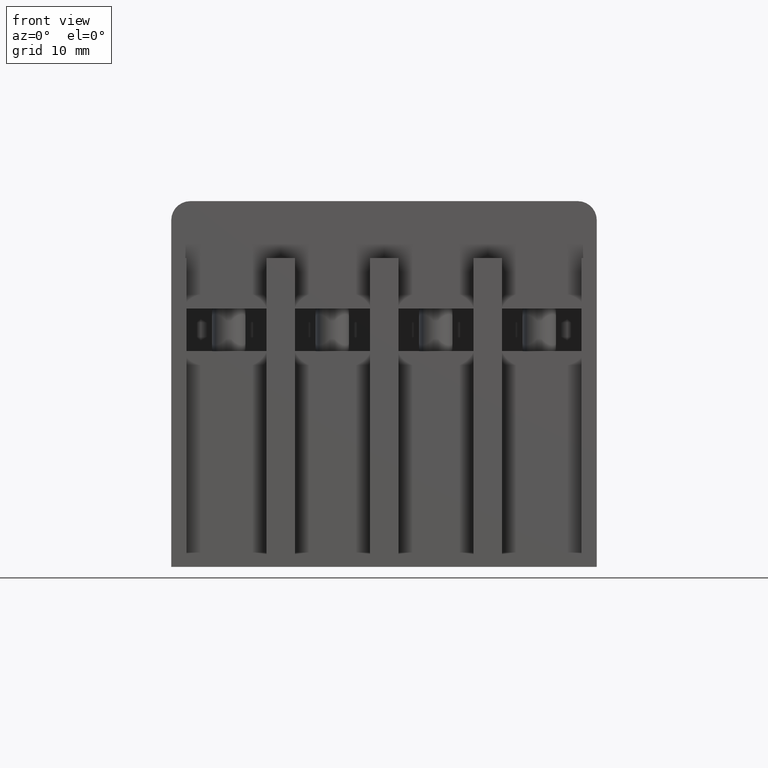
[diagram: clean part render]
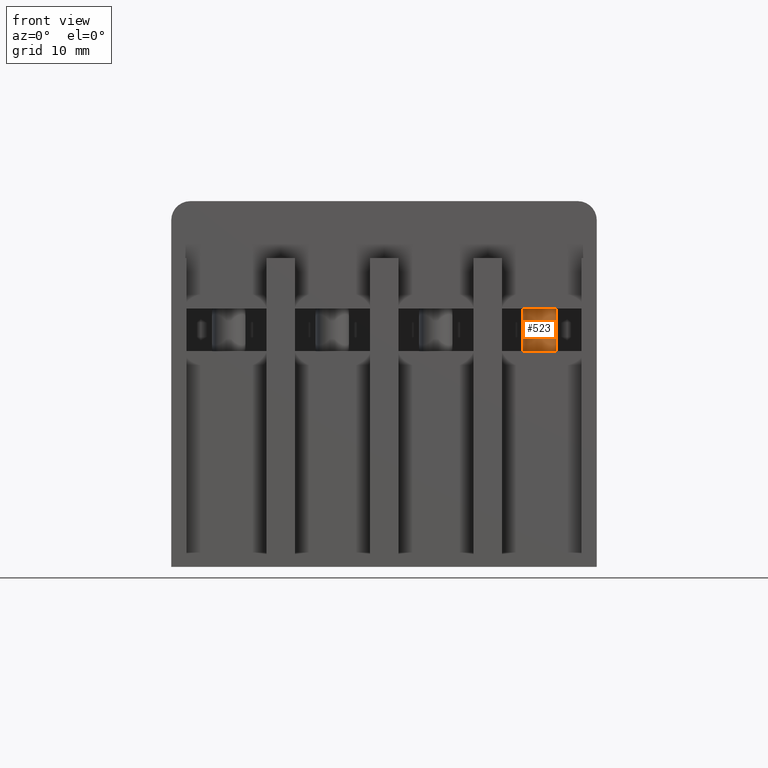
[diagram: same view with one face highlighted and labeled with its STEP entity id]
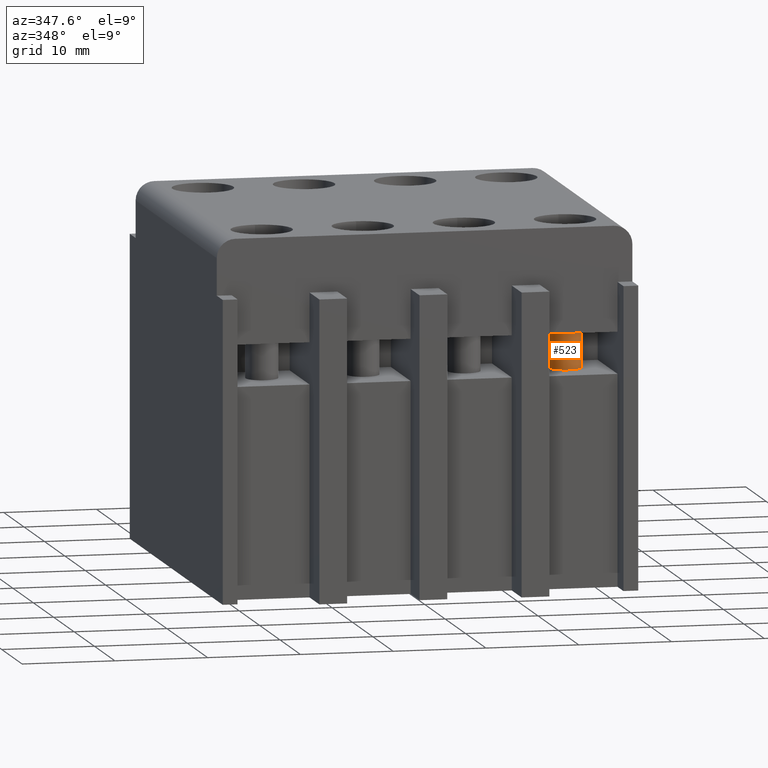
[diagram: same view with one face highlighted and labeled with its STEP entity id]
A machine part, front view. The second image highlights one B-rep face of the part: STEP entity #523.
A second angle (auxiliary view) of the same face is appended — the face is thin or edge-on in the first view.
In plain terms, the highlighted cylindrical surface (bore or boss wall) has radius 1.75 mm, axis along (0, 0, 1).
Its self-contained STEP definition (entity closure, byte-faithful):
#107=CYLINDRICAL_SURFACE('',#4693,1.75);
#311=CIRCLE('',#4533,1.75);
#350=CIRCLE('',#4613,1.75);
#523=ADVANCED_FACE('',(#925,#926),#107,.T.);
#925=FACE_BOUND('',#1117,.T.);
#926=FACE_BOUND('',#1118,.T.);
#1117=EDGE_LOOP('',(#1869));
#1118=EDGE_LOOP('',(#1870));
#1869=ORIENTED_EDGE('',*,*,#2980,.F.);
#1870=ORIENTED_EDGE('',*,*,#3141,.T.);
#2560=VERTEX_POINT('',#6203);
#2685=VERTEX_POINT('',#6530);
#2980=EDGE_CURVE('',#2560,#2560,#311,.T.);
#3141=EDGE_CURVE('',#2685,#2685,#350,.T.);
#4533=AXIS2_PLACEMENT_3D('',#6202,#4947,#4948);
#4613=AXIS2_PLACEMENT_3D('',#6529,#5229,#5230);
#4693=AXIS2_PLACEMENT_3D('',#6741,#5471,#5472);
#4947=DIRECTION('',(0.,0.,1.));
#4948=DIRECTION('',(0.999999999999999,0.,0.));
#5229=DIRECTION('',(0.,0.,1.));
#5230=DIRECTION('',(-1.,0.,0.));
#5471=DIRECTION('',(0.,0.,1.));
#5472=DIRECTION('',(0.999999999999999,0.,0.));
#6202=CARTESIAN_POINT('',(16.35,-14.4,102.7));
#6203=CARTESIAN_POINT('',(18.1,-14.4,102.7));
#6529=CARTESIAN_POINT('',(16.35,-14.4,98.2));
#6530=CARTESIAN_POINT('',(14.6,-14.4,98.2));
#6741=CARTESIAN_POINT('',(16.35,-14.4,97.75));